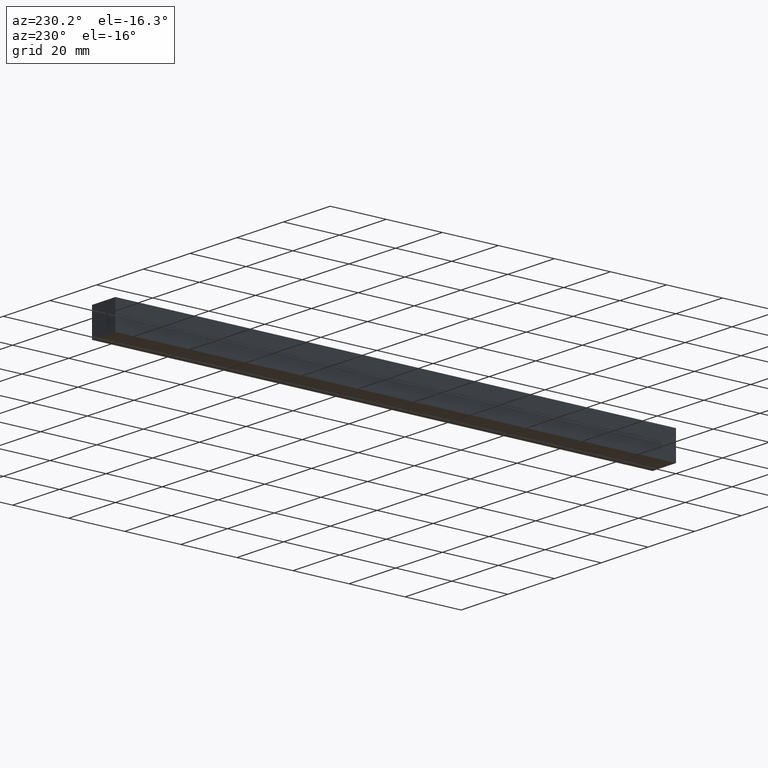
[diagram: clean part render]
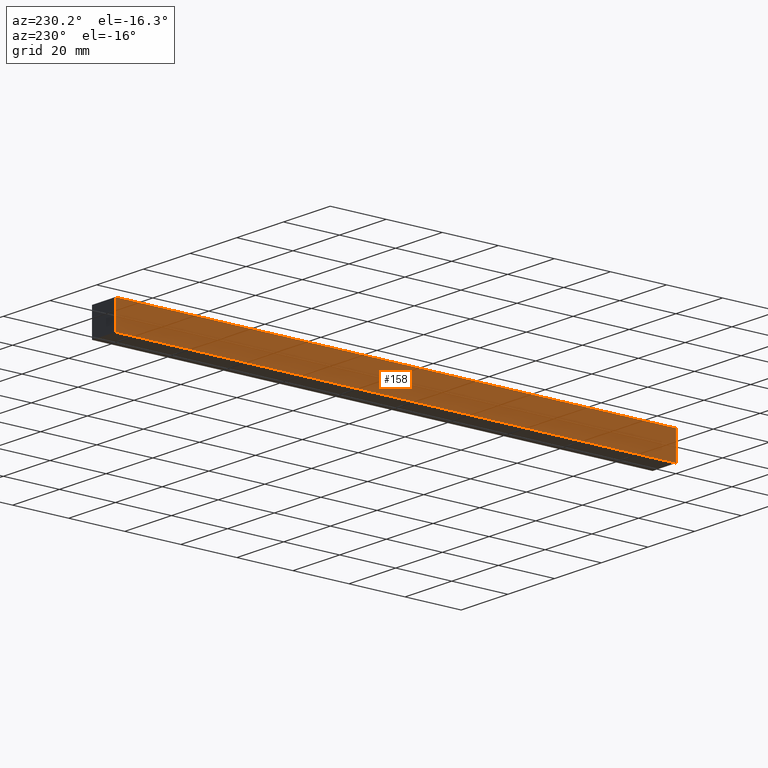
[diagram: same view with one face highlighted and labeled with its STEP entity id]
A machine part, auxiliary view. The second image highlights one B-rep face of the part: STEP entity #158.
In plain terms, the highlighted planar face has unit normal (-1, 0, 0).
Its self-contained STEP definition (entity closure, byte-faithful):
#11 = DIRECTION ( 'NONE',  ( -0.0000000000000000000, -0.0000000000000000000, -1.000000000000000000 ) ) ;
#12 = CARTESIAN_POINT ( 'NONE',  ( 0.0000000000000000000, 200.0000000000000000, 10.00000000000000000 ) ) ;
#15 = LINE ( 'NONE', #185, #227 ) ;
#16 = EDGE_CURVE ( 'NONE', #62, #118, #231, .T. ) ;
#19 = VERTEX_POINT ( 'NONE', #111 ) ;
#34 = VERTEX_POINT ( 'NONE', #12 ) ;
#44 = AXIS2_PLACEMENT_3D ( 'NONE', #165, #60, #189 ) ;
#50 = CARTESIAN_POINT ( 'NONE',  ( 0.0000000000000000000, 200.0000000000000000, 0.0000000000000000000 ) ) ;
#60 = DIRECTION ( 'NONE',  ( -1.000000000000000000, 0.0000000000000000000, 0.0000000000000000000 ) ) ;
#62 = VERTEX_POINT ( 'NONE', #211 ) ;
#67 = LINE ( 'NONE', #50, #145 ) ;
#74 = VECTOR ( 'NONE', #124, 1000.000000000000000 ) ;
#77 = ORIENTED_EDGE ( 'NONE', *, *, #237, .T. ) ;
#83 = FACE_OUTER_BOUND ( 'NONE', #164, .T. ) ;
#90 = VECTOR ( 'NONE', #192, 1000.000000000000000 ) ;
#91 = ORIENTED_EDGE ( 'NONE', *, *, #198, .F. ) ;
#102 = ORIENTED_EDGE ( 'NONE', *, *, #150, .T. ) ;
#111 = CARTESIAN_POINT ( 'NONE',  ( 0.0000000000000000000, 200.0000000000000000, 0.0000000000000000000 ) ) ;
#116 = CARTESIAN_POINT ( 'NONE',  ( 0.0000000000000000000, 0.0000000000000000000, 0.0000000000000000000 ) ) ;
#118 = VERTEX_POINT ( 'NONE', #193 ) ;
#124 = DIRECTION ( 'NONE',  ( -0.0000000000000000000, -0.0000000000000000000, -1.000000000000000000 ) ) ;
#126 = LINE ( 'NONE', #204, #90 ) ;
#141 = PLANE ( 'NONE',  #44 ) ;
#144 = DIRECTION ( 'NONE',  ( 0.0000000000000000000, -1.000000000000000000, 0.0000000000000000000 ) ) ;
#145 = VECTOR ( 'NONE', #11, 1000.000000000000000 ) ;
#150 = EDGE_CURVE ( 'NONE', #34, #19, #67, .T. ) ;
#158 = ADVANCED_FACE ( 'NONE', ( #83 ), #141, .T. ) ;
#164 = EDGE_LOOP ( 'NONE', ( #174, #91, #102, #77 ) ) ;
#165 = CARTESIAN_POINT ( 'NONE',  ( 0.0000000000000000000, 1000.000000000000000, 10.00000000000000000 ) ) ;
#174 = ORIENTED_EDGE ( 'NONE', *, *, #16, .F. ) ;
#185 = CARTESIAN_POINT ( 'NONE',  ( 0.0000000000000000000, 1000.000000000000000, 0.0000000000000000000 ) ) ;
#189 = DIRECTION ( 'NONE',  ( 0.0000000000000000000, 0.0000000000000000000, 1.000000000000000000 ) ) ;
#192 = DIRECTION ( 'NONE',  ( 0.0000000000000000000, -1.000000000000000000, 0.0000000000000000000 ) ) ;
#193 = CARTESIAN_POINT ( 'NONE',  ( 0.0000000000000000000, 0.0000000000000000000, 0.0000000000000000000 ) ) ;
#198 = EDGE_CURVE ( 'NONE', #34, #62, #126, .T. ) ;
#204 = CARTESIAN_POINT ( 'NONE',  ( 0.0000000000000000000, 1000.000000000000000, 10.00000000000000000 ) ) ;
#211 = CARTESIAN_POINT ( 'NONE',  ( 0.0000000000000000000, 0.0000000000000000000, 10.00000000000000000 ) ) ;
#227 = VECTOR ( 'NONE', #144, 1000.000000000000000 ) ;
#231 = LINE ( 'NONE', #116, #74 ) ;
#237 = EDGE_CURVE ( 'NONE', #19, #118, #15, .T. ) ;